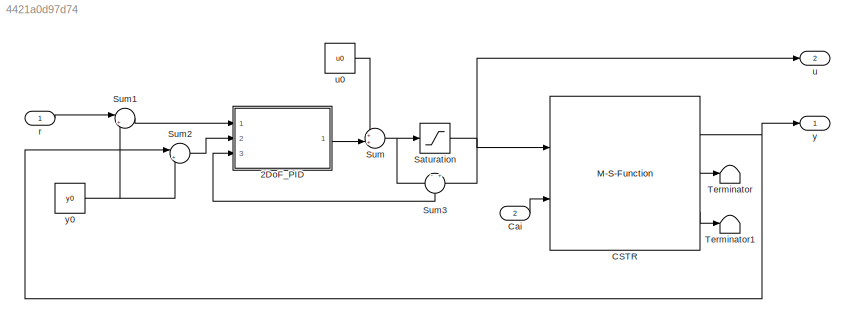
MODEL slx_4421a0d97d74
KIND model
CONFIG AbsTol = auto
CONFIG EnableMultiTasking = off
CONFIG FixedStep = step
CONFIG MaxStep = 10e-3
CONFIG MinStep = auto
CONFIG RelTol = 1e-3
CONFIG SampleTimeConstraint = Unconstrained
CONFIG Solver = FixedStepAuto
CONFIG SolverName = FixedStepAuto
CONFIG StartTime = 0.0
CONFIG StopTime = tfinal
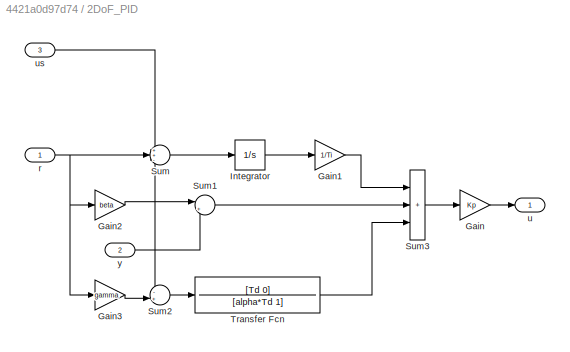
BLOCK [SubSystem] 2DoF_PID
  Ports = [3, 1]
  RequestExecContextInheritance = off
BLOCK [Gain] 2DoF_PID/Gain
  Gain = Kp
BLOCK [Gain] 2DoF_PID/Gain1
  Gain = 1/Ti
BLOCK [Gain] 2DoF_PID/Gain2
  Gain = beta
BLOCK [Gain] 2DoF_PID/Gain3
  Gain = gamma
BLOCK [Integrator] 2DoF_PID/Integrator
  Ports = [1, 1]
BLOCK [Sum] 2DoF_PID/Sum
  Inputs = ++-
  Ports = [3, 1]
BLOCK [Sum] 2DoF_PID/Sum1
  Inputs = |+-
  Ports = [2, 1]
BLOCK [Sum] 2DoF_PID/Sum2
  Inputs = -+|
  Ports = [2, 1]
BLOCK [Sum] 2DoF_PID/Sum3
  IconShape = rectangular
  Inputs = +++
  Ports = [3, 1]
BLOCK [TransferFcn] 2DoF_PID/Transfer Fcn
  Denominator = [alpha*Td 1]
  Numerator = [Td 0]
BLOCK [Inport] 2DoF_PID/r
BLOCK [Outport] 2DoF_PID/u
BLOCK [Inport] 2DoF_PID/us
  Port = 3
BLOCK [Inport] 2DoF_PID/y
  Port = 2
BLOCK [M-S-Function] CSTR
  FunctionName = sfun_CSTR
  Parameters = [k1;\nk2;\nk3; V], [Ca0; Cb0]
  Ports = [2, 3]
BLOCK [Inport] Cai
  Port = 2
BLOCK [Saturate] Saturation
  LowerLimit = 0
  UpperLimit = 100
BLOCK [Sum] Sum
  Inputs = ++|
  Ports = [2, 1]
BLOCK [Sum] Sum1
  Inputs = |+-
  Ports = [2, 1]
BLOCK [Sum] Sum2
  Inputs = |+-
  Ports = [2, 1]
BLOCK [Sum] Sum3
  Inputs = -|+
  NameLocation = left
  Ports = [2, 1]
BLOCK [Terminator] Terminator
BLOCK [Terminator] Terminator1
BLOCK [Inport] r
BLOCK [Outport] u
  Port = 2
BLOCK [Constant] u0
  Value = u0
BLOCK [Outport] y
BLOCK [Constant] y0
  Value = y0
LINE 2DoF_PID/Gain1:1 -> 2DoF_PID/Sum3:1
LINE 2DoF_PID/Gain2:1 -> 2DoF_PID/Sum1:1
LINE 2DoF_PID/Gain3:1 -> 2DoF_PID/Sum2:2
LINE 2DoF_PID/Gain:1 -> 2DoF_PID/u:1
LINE 2DoF_PID/Integrator:1 -> 2DoF_PID/Gain1:1
LINE 2DoF_PID/Sum1:1 -> 2DoF_PID/Sum3:2
LINE 2DoF_PID/Sum2:1 -> 2DoF_PID/Transfer Fcn:1
LINE 2DoF_PID/Sum3:1 -> 2DoF_PID/Gain:1
LINE 2DoF_PID/Sum:1 -> 2DoF_PID/Integrator:1
LINE 2DoF_PID/Transfer Fcn:1 -> 2DoF_PID/Sum3:3
NET 2DoF_PID/r:1 -> 2DoF_PID/Gain2:1, 2DoF_PID/Gain3:1, 2DoF_PID/Sum:2
LINE 2DoF_PID/us:1 -> 2DoF_PID/Sum:1
NET 2DoF_PID/y:1 -> 2DoF_PID/Sum1:2, 2DoF_PID/Sum2:1, 2DoF_PID/Sum:3
LINE 2DoF_PID:1 -> Sum:2
NET CSTR:1 -> Sum2:1, y:1
LINE CSTR:2 -> Terminator:1
LINE CSTR:3 -> Terminator1:1
LINE Cai:1 -> CSTR:2
NET Saturation:1 -> CSTR:1, Sum3:2, u:1
LINE Sum1:1 -> 2DoF_PID:1
LINE Sum2:1 -> 2DoF_PID:2
LINE Sum3:1 -> 2DoF_PID:3
NET Sum:1 -> Saturation:1, Sum3:1
LINE r:1 -> Sum1:1
LINE u0:1 -> Sum:1
NET y0:1 -> Sum1:2, Sum2:2
note: NET lines group one-source signal fan-out (src -> all destinations, sorted); 1:1 wires keep LINE
